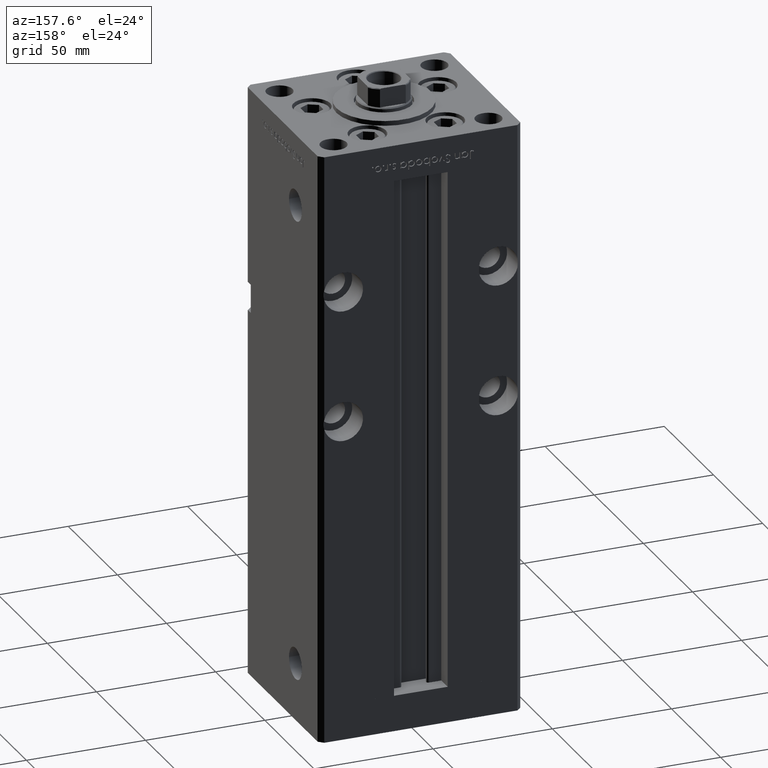
[diagram: clean part render]
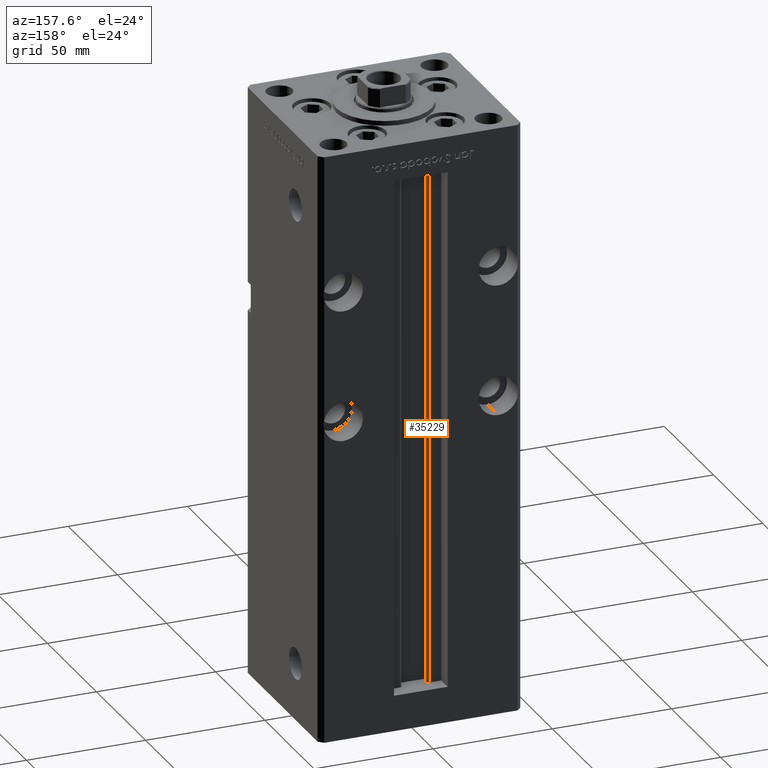
[diagram: same view with one face highlighted and labeled with its STEP entity id]
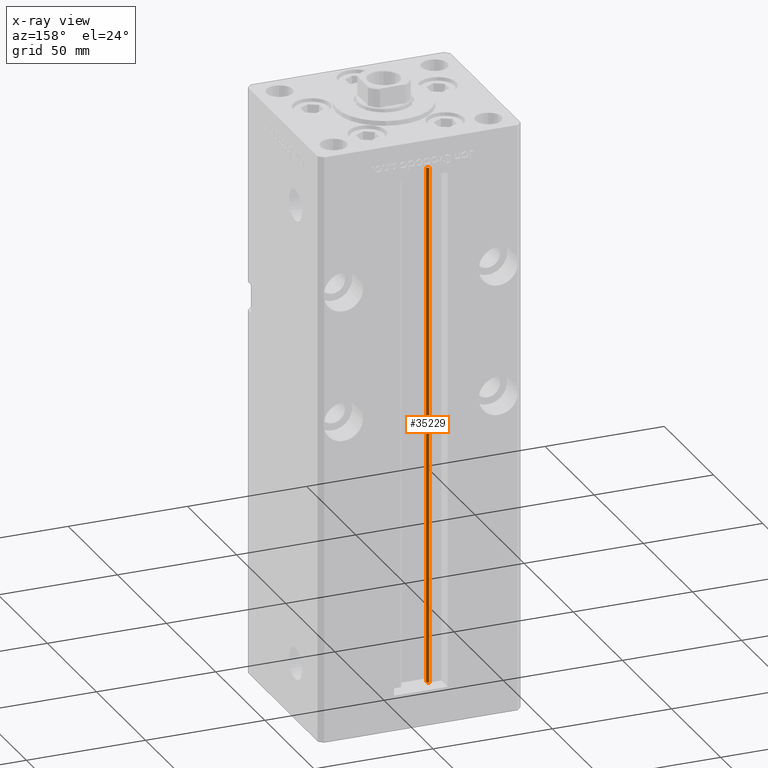
[diagram: x-ray of the same camera — body ghosted, the highlighted face saturated]
A machine part, auxiliary view. The second image highlights one B-rep face of the part: STEP entity #35229.
The next image is the same camera in x-ray: the body ghosted, the highlighted face saturated — about 0% of this face is hidden behind the body in this view.
In plain terms, the highlighted cylindrical surface (edge-blend (fillet) strip) has radius 0.9333 mm, axis along (0, 0, 1).
Its self-contained STEP definition (entity closure, byte-faithful):
#2125 = EDGE_CURVE ( 'NONE', #8139, #39912, #39098, .T. ) ;
#2957 = EDGE_LOOP ( 'NONE', ( #22755, #52346, #27959, #34588 ) ) ;
#3757 = CARTESIAN_POINT ( 'NONE',  ( -5.249999999999996447, 30.06666666666599852, 0.000000000000000000 ) ) ;
#4490 = CARTESIAN_POINT ( 'NONE',  ( -6.183333333333997928, 31.00000000000000000, 0.000000000000000000 ) ) ;
#5264 = CARTESIAN_POINT ( 'NONE',  ( -6.183333333333997928, 30.06666666666599852, 0.000000000000000000 ) ) ;
#5865 = CIRCLE ( 'NONE', #7612, 0.9333333333340008142 ) ;
#6979 = EDGE_CURVE ( 'NONE', #49866, #24649, #41299, .T. ) ;
#7612 = AXIS2_PLACEMENT_3D ( 'NONE', #5264, #46616, #46874 ) ;
#8139 = VERTEX_POINT ( 'NONE', #3757 ) ;
#14017 = CYLINDRICAL_SURFACE ( 'NONE', #34844, 0.9333333333340008142 ) ;
#15139 = EDGE_CURVE ( 'NONE', #49866, #8139, #5865, .T. ) ;
#18191 = CARTESIAN_POINT ( 'NONE',  ( -6.183333333333997928, 31.00000000000000000, 0.000000000000000000 ) ) ;
#22755 = ORIENTED_EDGE ( 'NONE', *, *, #2125, .F. ) ;
#24649 = VERTEX_POINT ( 'NONE', #31971 ) ;
#26364 = CARTESIAN_POINT ( 'NONE',  ( -6.183333333333997928, 30.06666666666599852, 0.000000000000000000 ) ) ;
#27959 = ORIENTED_EDGE ( 'NONE', *, *, #6979, .T. ) ;
#31009 = CARTESIAN_POINT ( 'NONE',  ( -5.249999999999996447, 30.06666666666599852, 218.5000000000000000 ) ) ;
#31754 = CIRCLE ( 'NONE', #41187, 0.9333333333340008142 ) ;
#31971 = CARTESIAN_POINT ( 'NONE',  ( -6.183333333333997928, 31.00000000000000000, 218.5000000000000000 ) ) ;
#34431 = FACE_OUTER_BOUND ( 'NONE', #2957, .T. ) ;
#34588 = ORIENTED_EDGE ( 'NONE', *, *, #50482, .T. ) ;
#34844 = AXIS2_PLACEMENT_3D ( 'NONE', #26364, #48656, #52674 ) ;
#35229 = ADVANCED_FACE ( 'NONE', ( #34431 ), #14017, .T. ) ;
#35702 = DIRECTION ( 'NONE',  ( 1.000000000000000000, 0.000000000000000000, 0.000000000000000000 ) ) ;
#37262 = DIRECTION ( 'NONE',  ( -0.000000000000000000, -0.000000000000000000, 1.000000000000000000 ) ) ;
#38211 = CARTESIAN_POINT ( 'NONE',  ( -6.183333333333997928, 30.06666666666599852, 218.5000000000000000 ) ) ;
#39098 = LINE ( 'NONE', #47686, #47642 ) ;
#39742 = DIRECTION ( 'NONE',  ( 0.000000000000000000, 0.000000000000000000, -1.000000000000000000 ) ) ;
#39912 = VERTEX_POINT ( 'NONE', #31009 ) ;
#41187 = AXIS2_PLACEMENT_3D ( 'NONE', #38211, #39742, #35702 ) ;
#41299 = LINE ( 'NONE', #4490, #46085 ) ;
#46085 = VECTOR ( 'NONE', #37262, 1000.000000000000000 ) ;
#46616 = DIRECTION ( 'NONE',  ( -0.000000000000000000, -0.000000000000000000, -1.000000000000000000 ) ) ;
#46874 = DIRECTION ( 'NONE',  ( 1.000000000000000000, 0.000000000000000000, 0.000000000000000000 ) ) ;
#47642 = VECTOR ( 'NONE', #50921, 1000.000000000000000 ) ;
#47686 = CARTESIAN_POINT ( 'NONE',  ( -5.249999999999996447, 30.06666666666599852, 0.000000000000000000 ) ) ;
#48656 = DIRECTION ( 'NONE',  ( -0.000000000000000000, -0.000000000000000000, 1.000000000000000000 ) ) ;
#49866 = VERTEX_POINT ( 'NONE', #18191 ) ;
#50482 = EDGE_CURVE ( 'NONE', #24649, #39912, #31754, .T. ) ;
#50921 = DIRECTION ( 'NONE',  ( -0.000000000000000000, -0.000000000000000000, 1.000000000000000000 ) ) ;
#52346 = ORIENTED_EDGE ( 'NONE', *, *, #15139, .F. ) ;
#52674 = DIRECTION ( 'NONE',  ( 1.000000000000000000, 0.000000000000000000, 0.000000000000000000 ) ) ;